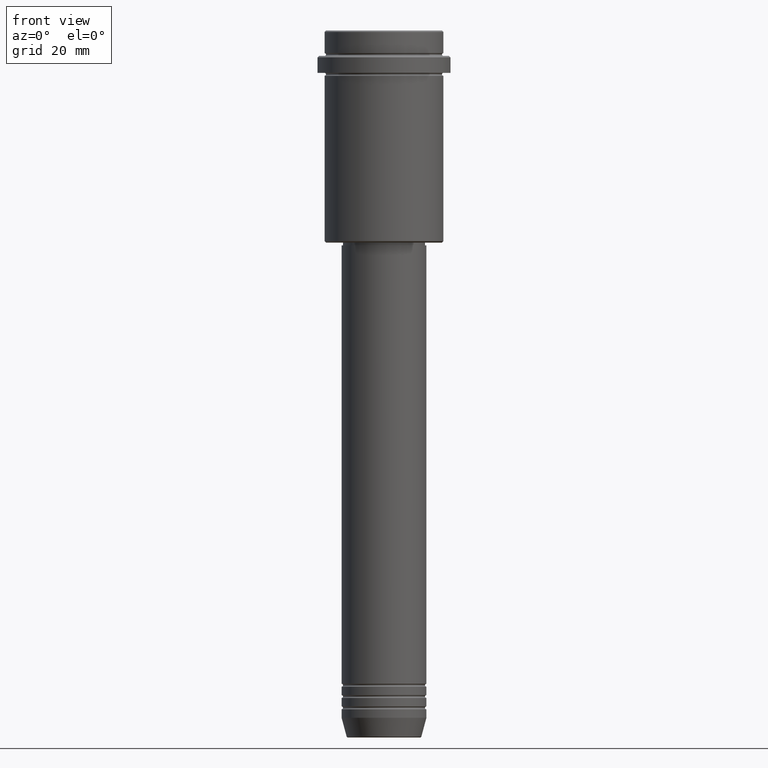
[diagram: clean part render]
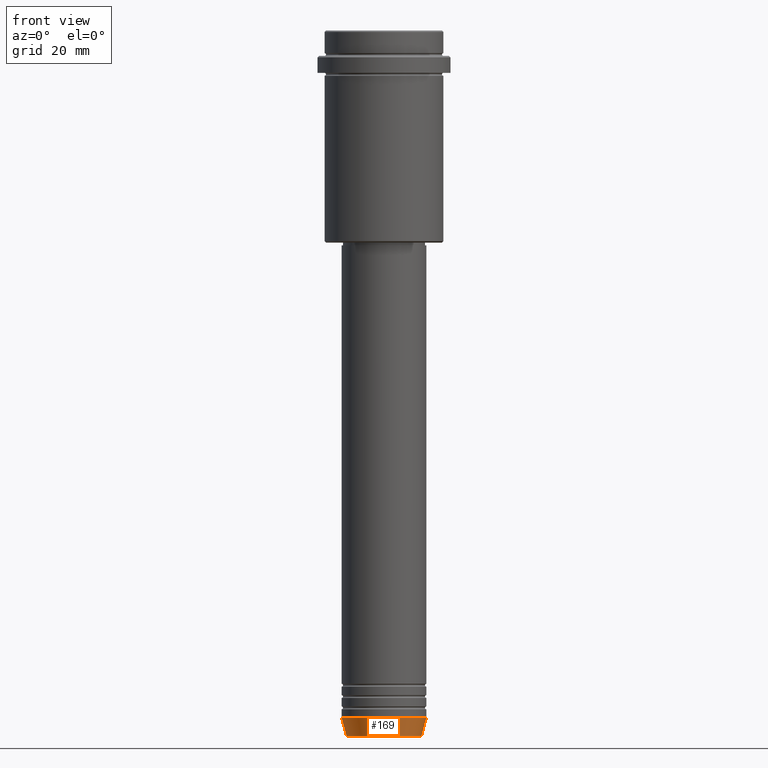
[diagram: same view with one face highlighted and labeled with its STEP entity id]
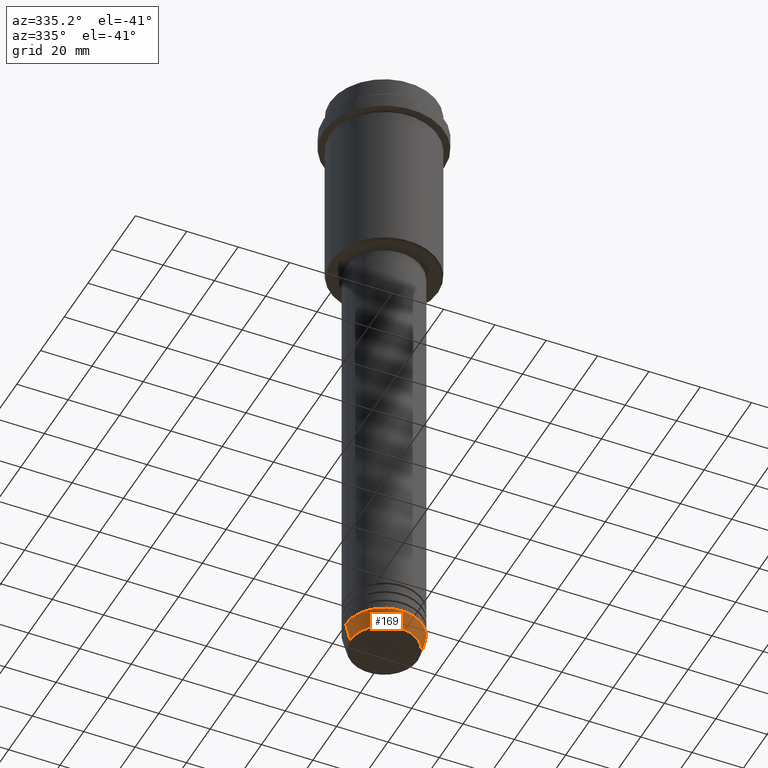
[diagram: same view with one face highlighted and labeled with its STEP entity id]
A machine part, front view. The second image highlights one B-rep face of the part: STEP entity #169.
A second angle (auxiliary view) of the same face is appended — the face is thin or edge-on in the first view.
In plain terms, the highlighted conical surface has half-angle 15 deg.
Its self-contained STEP definition (entity closure, byte-faithful):
#3 = EDGE_CURVE ( 'NONE', #500, #1043, #875, .T. ) ;
#101 = CIRCLE ( 'NONE', #1255, 15.00000000000000000 ) ;
#116 = ORIENTED_EDGE ( 'NONE', *, *, #1099, .T. ) ;
#134 = VERTEX_POINT ( 'NONE', #1348 ) ;
#169 = ADVANCED_FACE ( 'NONE', ( #373 ), #1066, .T. ) ;
#171 = DIRECTION ( 'NONE',  ( 0.2588190451025213501, 0.000000000000000000, 0.9659258262890680902 ) ) ;
#299 = EDGE_CURVE ( 'NONE', #500, #1409, #705, .T. ) ;
#373 = FACE_OUTER_BOUND ( 'NONE', #1358, .T. ) ;
#375 = LINE ( 'NONE', #1056, #1371 ) ;
#376 = VECTOR ( 'NONE', #634, 1000.000000000000000 ) ;
#424 = EDGE_CURVE ( 'NONE', #1409, #134, #101, .T. ) ;
#443 = AXIS2_PLACEMENT_3D ( 'NONE', #1021, #1130, #1241 ) ;
#500 = VERTEX_POINT ( 'NONE', #1015 ) ;
#625 = DIRECTION ( 'NONE',  ( -0.000000000000000000, -0.000000000000000000, 1.000000000000000000 ) ) ;
#630 = AXIS2_PLACEMENT_3D ( 'NONE', #1094, #1210, #787 ) ;
#634 = DIRECTION ( 'NONE',  ( -0.2588190451025213501, 3.169619151431772337E-17, 0.9659258262890680902 ) ) ;
#651 = CARTESIAN_POINT ( 'NONE',  ( -15.00000000000000000, 1.836970198721029589E-15, -243.0000000000000000 ) ) ;
#684 = ORIENTED_EDGE ( 'NONE', *, *, #299, .F. ) ;
#705 = LINE ( 'NONE', #1300, #376 ) ;
#744 = CARTESIAN_POINT ( 'NONE',  ( 0.000000000000000000, 0.000000000000000000, -243.0000000000000000 ) ) ;
#787 = DIRECTION ( 'NONE',  ( 1.000000000000000000, 0.000000000000000000, 0.000000000000000000 ) ) ;
#875 = CIRCLE ( 'NONE', #630, 13.22365507213719482 ) ;
#887 = ORIENTED_EDGE ( 'NONE', *, *, #424, .F. ) ;
#931 = CARTESIAN_POINT ( 'NONE',  ( 13.22365507213719482, 0.000000000000000000, -249.6294095225512422 ) ) ;
#1015 = CARTESIAN_POINT ( 'NONE',  ( -13.22365507213719660, 1.728200442216588780E-15, -249.6294095225512422 ) ) ;
#1021 = CARTESIAN_POINT ( 'NONE',  ( 0.000000000000000000, 0.000000000000000000, -243.0000000000000000 ) ) ;
#1043 = VERTEX_POINT ( 'NONE', #931 ) ;
#1056 = CARTESIAN_POINT ( 'NONE',  ( 15.00000000000000000, 0.000000000000000000, -243.0000000000000000 ) ) ;
#1064 = DIRECTION ( 'NONE',  ( 1.000000000000000000, 0.000000000000000000, 0.000000000000000000 ) ) ;
#1066 = CONICAL_SURFACE ( 'NONE', #443, 15.00000000000000000, 0.2617993877991500740 ) ;
#1094 = CARTESIAN_POINT ( 'NONE',  ( 0.000000000000000000, 0.000000000000000000, -249.6294095225512422 ) ) ;
#1099 = EDGE_CURVE ( 'NONE', #1043, #134, #375, .T. ) ;
#1130 = DIRECTION ( 'NONE',  ( -0.000000000000000000, -0.000000000000000000, 1.000000000000000000 ) ) ;
#1210 = DIRECTION ( 'NONE',  ( -0.000000000000000000, -0.000000000000000000, 1.000000000000000000 ) ) ;
#1241 = DIRECTION ( 'NONE',  ( 1.000000000000000000, 0.000000000000000000, 0.000000000000000000 ) ) ;
#1247 = ORIENTED_EDGE ( 'NONE', *, *, #3, .T. ) ;
#1255 = AXIS2_PLACEMENT_3D ( 'NONE', #744, #625, #1064 ) ;
#1300 = CARTESIAN_POINT ( 'NONE',  ( -15.00000000000000000, 1.836970198721029589E-15, -243.0000000000000000 ) ) ;
#1348 = CARTESIAN_POINT ( 'NONE',  ( 15.00000000000000000, 0.000000000000000000, -243.0000000000000000 ) ) ;
#1358 = EDGE_LOOP ( 'NONE', ( #684, #1247, #116, #887 ) ) ;
#1371 = VECTOR ( 'NONE', #171, 1000.000000000000000 ) ;
#1409 = VERTEX_POINT ( 'NONE', #651 ) ;